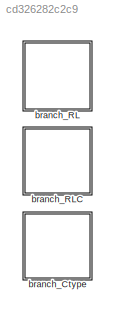
MODEL slx_cd326282c2c9
KIND library
CONFIG AbsTol = auto
CONFIG EnableMultiTasking = off
CONFIG FixedStep = auto
CONFIG MaxStep = auto
CONFIG MinStep = auto
CONFIG RelTol = 1e-3
CONFIG SampleTimeConstraint = Unconstrained
CONFIG SolverName = VariableStepAuto
CONFIG StartTime = 0.0
CONFIG StopTime = 10.0
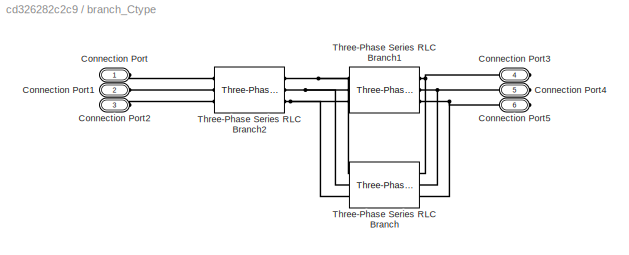
BLOCK [SubSystem] branch_Ctype
  Ports = [0, 0, 0, 0, 0, 3, 3]
  RequestExecContextInheritance = off
BLOCK [PMIOPort] branch_Ctype/Connection Port
  Side = Left
BLOCK [PMIOPort] branch_Ctype/Connection Port1
  Port = 2
  Side = Left
BLOCK [PMIOPort] branch_Ctype/Connection Port2
  Port = 3
  Side = Left
BLOCK [PMIOPort] branch_Ctype/Connection Port3
  Port = 4
  Side = Right
BLOCK [PMIOPort] branch_Ctype/Connection Port4
  Port = 5
  Side = Right
BLOCK [PMIOPort] branch_Ctype/Connection Port5
  Port = 6
  Side = Right
BLOCK [Reference] branch_Ctype/Three-Phase Series RLC Branch  REF=spsThreePhaseSeriesRLCBranchLib/Three-Phase
Series RLC Branch
  AttributesFormatString = \n
  Ports = [0, 0, 0, 0, 0, 3, 3]
  SourceBlock = spsThreePhaseSeriesRLCBranchLib/Three-Phase\nSeries RLC Branch
  SourceProductBaseCode = PS
  SourceType = Three-Phase Series RLC Branch
BLOCK [Reference] branch_Ctype/Three-Phase Series RLC Branch1  REF=spsThreePhaseSeriesRLCBranchLib/Three-Phase
Series RLC Branch
  AttributesFormatString = \n
  Ports = [0, 0, 0, 0, 0, 3, 3]
  SourceBlock = spsThreePhaseSeriesRLCBranchLib/Three-Phase\nSeries RLC Branch
  SourceProductBaseCode = PS
  SourceType = Three-Phase Series RLC Branch
BLOCK [Reference] branch_Ctype/Three-Phase Series RLC Branch2  REF=spsThreePhaseSeriesRLCBranchLib/Three-Phase
Series RLC Branch
  AttributesFormatString = \n
  Ports = [0, 0, 0, 0, 0, 3, 3]
  SourceBlock = spsThreePhaseSeriesRLCBranchLib/Three-Phase\nSeries RLC Branch
  SourceProductBaseCode = PS
  SourceType = Three-Phase Series RLC Branch
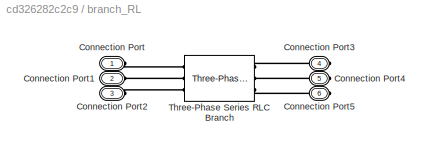
BLOCK [SubSystem] branch_RL
  Ports = [0, 0, 0, 0, 0, 3, 3]
  RequestExecContextInheritance = off
BLOCK [PMIOPort] branch_RL/Connection Port
  Side = Left
  Tag = PMCPort
BLOCK [PMIOPort] branch_RL/Connection Port1
  Port = 2
  Side = Left
  Tag = PMCPort
BLOCK [PMIOPort] branch_RL/Connection Port2
  Port = 3
  Side = Left
  Tag = PMCPort
BLOCK [PMIOPort] branch_RL/Connection Port3
  Port = 4
  Side = Right
  Tag = PMCPort
BLOCK [PMIOPort] branch_RL/Connection Port4
  Port = 5
  Side = Right
  Tag = PMCPort
BLOCK [PMIOPort] branch_RL/Connection Port5
  Port = 6
  Side = Right
  Tag = PMCPort
BLOCK [Reference] branch_RL/Three-Phase Series RLC Branch  REF=spsThreePhaseSeriesRLCBranchLib/Three-Phase
Series RLC Branch
  AttributesFormatString = \n
  Ports = [0, 0, 0, 0, 0, 3, 3]
  SourceBlock = spsThreePhaseSeriesRLCBranchLib/Three-Phase\nSeries RLC Branch
  SourceProductBaseCode = PS
  SourceType = Three-Phase Series RLC Branch
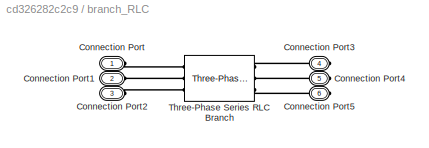
BLOCK [SubSystem] branch_RLC
  Ports = [0, 0, 0, 0, 0, 3, 3]
  RequestExecContextInheritance = off
BLOCK [PMIOPort] branch_RLC/Connection Port
  Side = Left
  Tag = PMCPort
BLOCK [PMIOPort] branch_RLC/Connection Port1
  Port = 2
  Side = Left
  Tag = PMCPort
BLOCK [PMIOPort] branch_RLC/Connection Port2
  Port = 3
  Side = Left
  Tag = PMCPort
BLOCK [PMIOPort] branch_RLC/Connection Port3
  Port = 4
  Side = Right
  Tag = PMCPort
BLOCK [PMIOPort] branch_RLC/Connection Port4
  Port = 5
  Side = Right
  Tag = PMCPort
BLOCK [PMIOPort] branch_RLC/Connection Port5
  Port = 6
  Side = Right
  Tag = PMCPort
BLOCK [Reference] branch_RLC/Three-Phase Series RLC Branch  REF=spsThreePhaseSeriesRLCBranchLib/Three-Phase
Series RLC Branch
  AttributesFormatString = \n
  Ports = [0, 0, 0, 0, 0, 3, 3]
  SourceBlock = spsThreePhaseSeriesRLCBranchLib/Three-Phase\nSeries RLC Branch
  SourceProductBaseCode = PS
  SourceType = Three-Phase Series RLC Branch
PLINE branch_Ctype/Connection Port1:RConn1 -- branch_Ctype/Three-Phase Series RLC Branch2:LConn2
PLINE branch_Ctype/Connection Port2:RConn1 -- branch_Ctype/Three-Phase Series RLC Branch2:LConn3
PNET net1: branch_Ctype/Connection Port3:RConn1 -- branch_Ctype/Three-Phase Series RLC Branch1:RConn1 -- branch_Ctype/Three-Phase Series RLC Branch:RConn1
PNET net2: branch_Ctype/Connection Port4:RConn1 -- branch_Ctype/Three-Phase Series RLC Branch1:RConn2 -- branch_Ctype/Three-Phase Series RLC Branch:RConn2
PNET net3: branch_Ctype/Connection Port5:RConn1 -- branch_Ctype/Three-Phase Series RLC Branch1:RConn3 -- branch_Ctype/Three-Phase Series RLC Branch:RConn3
PLINE branch_Ctype/Connection Port:RConn1 -- branch_Ctype/Three-Phase Series RLC Branch2:LConn1
PNET net4: branch_Ctype/Three-Phase Series RLC Branch1:LConn1 -- branch_Ctype/Three-Phase Series RLC Branch2:RConn1 -- branch_Ctype/Three-Phase Series RLC Branch:LConn1
PNET net5: branch_Ctype/Three-Phase Series RLC Branch1:LConn2 -- branch_Ctype/Three-Phase Series RLC Branch2:RConn2 -- branch_Ctype/Three-Phase Series RLC Branch:LConn2
PNET net6: branch_Ctype/Three-Phase Series RLC Branch1:LConn3 -- branch_Ctype/Three-Phase Series RLC Branch2:RConn3 -- branch_Ctype/Three-Phase Series RLC Branch:LConn3
PLINE branch_RL/Connection Port1:RConn1 -- branch_RL/Three-Phase Series RLC Branch:LConn2
PLINE branch_RL/Connection Port2:RConn1 -- branch_RL/Three-Phase Series RLC Branch:LConn3
PLINE branch_RL/Connection Port3:RConn1 -- branch_RL/Three-Phase Series RLC Branch:RConn1
PLINE branch_RL/Connection Port4:RConn1 -- branch_RL/Three-Phase Series RLC Branch:RConn2
PLINE branch_RL/Connection Port5:RConn1 -- branch_RL/Three-Phase Series RLC Branch:RConn3
PLINE branch_RL/Connection Port:RConn1 -- branch_RL/Three-Phase Series RLC Branch:LConn1
PLINE branch_RLC/Connection Port1:RConn1 -- branch_RLC/Three-Phase Series RLC Branch:LConn2
PLINE branch_RLC/Connection Port2:RConn1 -- branch_RLC/Three-Phase Series RLC Branch:LConn3
PLINE branch_RLC/Connection Port3:RConn1 -- branch_RLC/Three-Phase Series RLC Branch:RConn1
PLINE branch_RLC/Connection Port4:RConn1 -- branch_RLC/Three-Phase Series RLC Branch:RConn2
PLINE branch_RLC/Connection Port5:RConn1 -- branch_RLC/Three-Phase Series RLC Branch:RConn3
PLINE branch_RLC/Connection Port:RConn1 -- branch_RLC/Three-Phase Series RLC Branch:LConn1
note: PNET lines group multi-terminal physical nets as a canonical sorted terminal list (undirected conserving connections); 2-terminal nets keep the pairwise PLINE form
